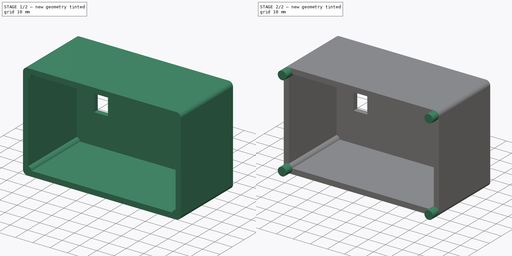
[diagram: build sequence overview — one tinted view per stage of 2, left to right]
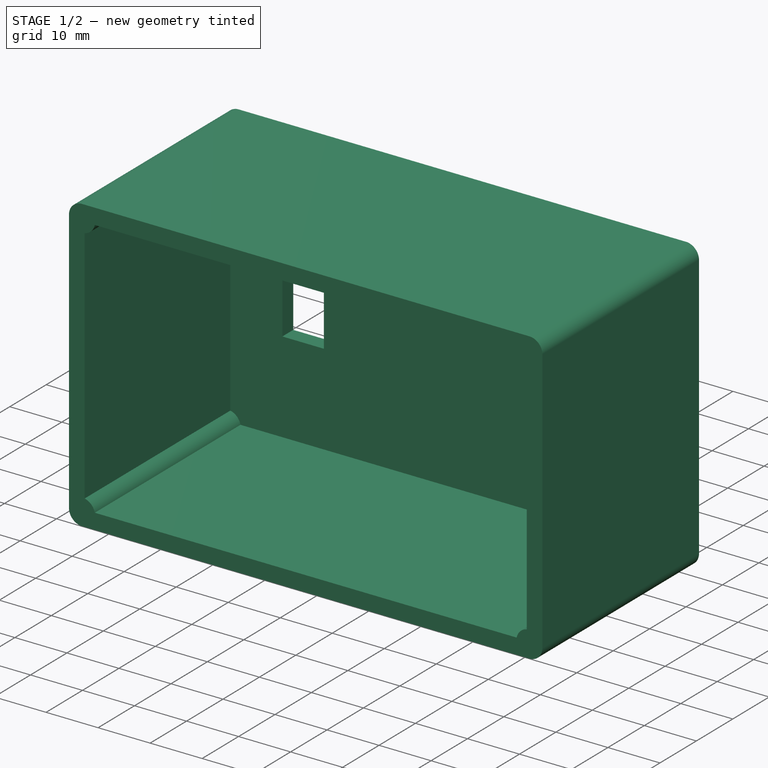
[diagram: stage 1 of 2 — iso view after this stage's code; geometry added in this stage tinted green]
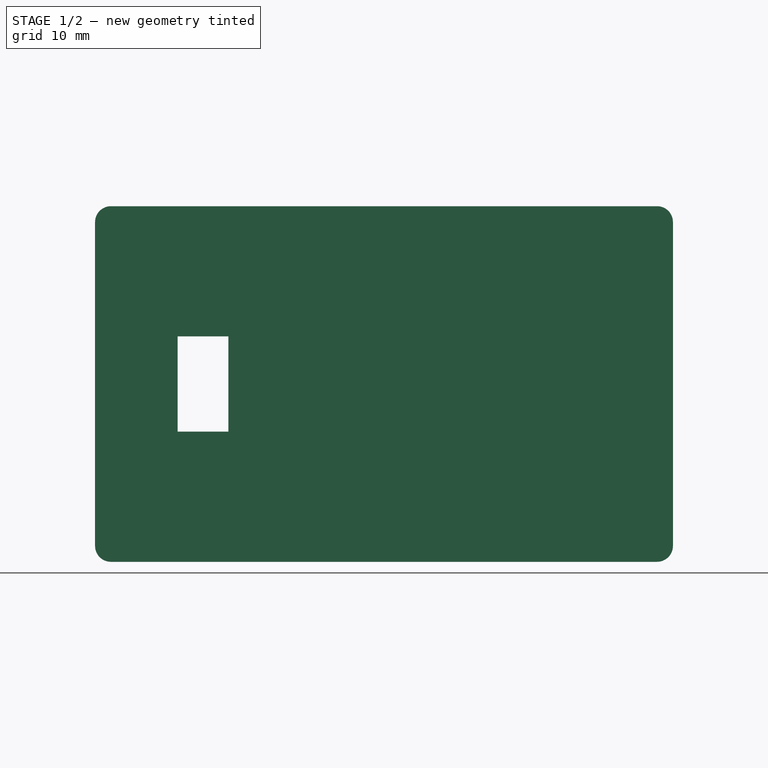
[diagram: stage 1 of 2 — front view after this stage's code; geometry added in this stage tinted green]
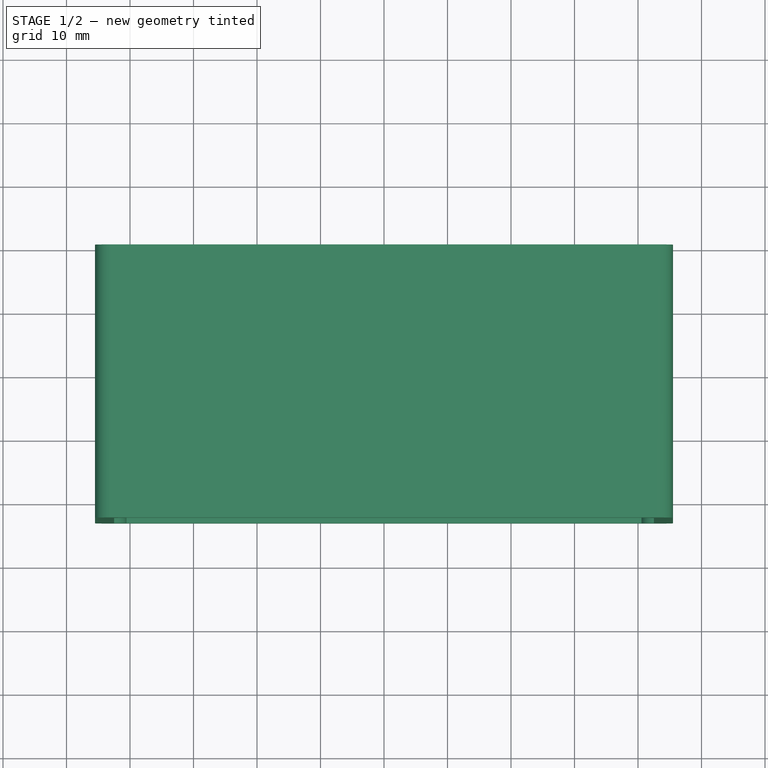
[diagram: stage 1 of 2 — top view after this stage's code; geometry added in this stage tinted green]
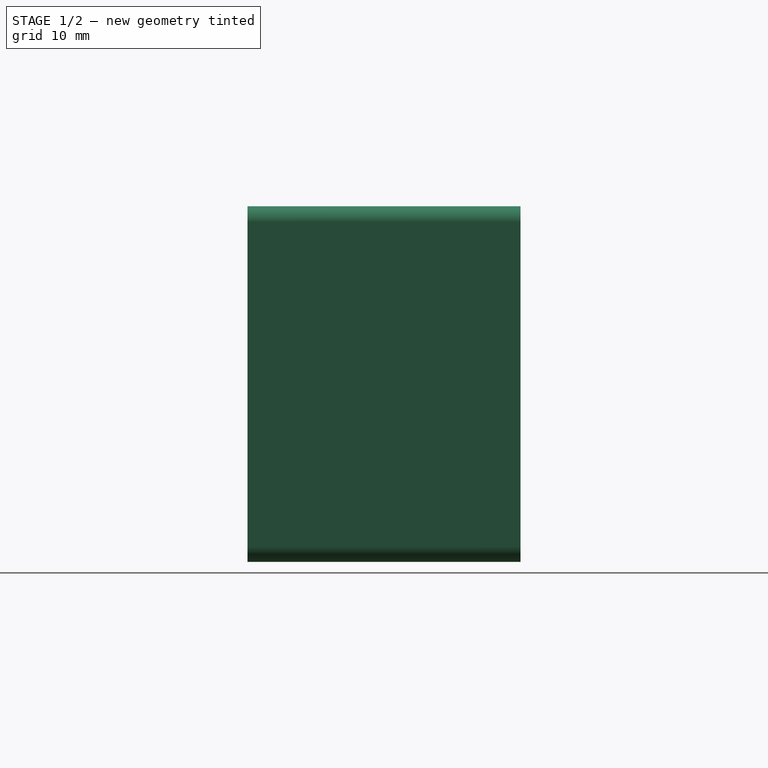
[diagram: stage 1 of 2 — right view after this stage's code; geometry added in this stage tinted green]
FCSTD DOCUMENT  (FreeCAD 0.20R29603 (Git))
Label: body2
License: All rights reserved
LicenseURL: http://en.wikipedia.org/wiki/All_rights_reserved
objects: Sketcher::SketchObject×3, PartDesign::Pad×3, PartDesign::Body×1
note: 10 computed .brp shape members not serialized (recipe doc carries the construction recipe); baked Part::Feature solids carry a one-line shape summary decoded from their .brp

FEATURE [Sketcher::SketchObject] Sketch
  FullyConstrained = true
  MapMode = 5
  Placement = pos=(0,0,0) rot=(1,0,0;1.5708rad)
  Support = -> [XZ_Plane]
  sketch-geometry (16):
    g0: LineSegment StartX=-40.5505 StartY=25 StartZ=0 EndX=40.5505 EndY=25 EndZ=0
    g1: LineSegment StartX=42.5 StartY=23.0505 StartZ=0 EndX=42.5 EndY=-23.0505 EndZ=0
    g2: LineSegment StartX=40.5505 StartY=-25 StartZ=0 EndX=-40.5505 EndY=-25 EndZ=0
    g3: LineSegment StartX=-42.5 StartY=-23.0505 StartZ=0 EndX=-42.5 EndY=23.0505 EndZ=0
    g4: LineSegment StartX=-43 StartY=28 StartZ=0 EndX=43 EndY=28 EndZ=0
    g5: LineSegment StartX=45.5 StartY=25.5 StartZ=0 EndX=45.5 EndY=-25.5 EndZ=0
    g6: LineSegment StartX=43 StartY=-28 StartZ=0 EndX=-43 EndY=-28 EndZ=0
    g7: LineSegment StartX=-45.5 StartY=-25.5 StartZ=0 EndX=-45.5 EndY=25.5 EndZ=0
    g8: ArcOfCircle CenterX=-43 CenterY=25.5 CenterZ=0 NormalX=0 NormalY=0 NormalZ=1 AngleXU=0 Radius=2.5 StartAngle=4.91375 EndAngle=6.08183
    g9: ArcOfCircle CenterX=43 CenterY=25.5 CenterZ=0 NormalX=0 NormalY=0 NormalZ=1 AngleXU=0 Radius=2.5 StartAngle=3.34295 EndAngle=4.51103
    g10: ArcOfCircle CenterX=43 CenterY=-25.5 CenterZ=0 NormalX=0 NormalY=0 NormalZ=1 AngleXU=0 Radius=2.5 StartAngle=4.71239 EndAngle=6.28319
    g11: ArcOfCircle CenterX=-43 CenterY=-25.5 CenterZ=0 NormalX=0 NormalY=0 NormalZ=1 AngleXU=0 Radius=2.5 StartAngle=3.14159 EndAngle=4.71239
    g12: ArcOfCircle CenterX=-43 CenterY=-25.5 CenterZ=0 NormalX=0 NormalY=0 NormalZ=1 AngleXU=0 Radius=2.5 StartAngle=0.201358 EndAngle=1.36944
    g13: ArcOfCircle CenterX=43 CenterY=-25.5 CenterZ=0 NormalX=0 NormalY=0 NormalZ=1 AngleXU=0 Radius=2.5 StartAngle=1.77215 EndAngle=2.94023
    g14: ArcOfCircle CenterX=43 CenterY=25.5 CenterZ=0 NormalX=0 NormalY=0 NormalZ=1 AngleXU=0 Radius=2.5 StartAngle=5e-16 EndAngle=1.5708
    g15: ArcOfCircle CenterX=-43 CenterY=25.5 CenterZ=0 NormalX=0 NormalY=0 NormalZ=1 AngleXU=0 Radius=2.5 StartAngle=1.5708 EndAngle=3.14159
  constraints (44):
    c: Horizontal(g0)
    c: Horizontal(g2)
    c: Vertical(g1)
    c: Vertical(g3)
    c: Horizontal(g4)
    c: Horizontal(g6)
    c: Vertical(g5)
    c: Vertical(g7)
    c: Equal(g8,g9)
    c: Equal(g8,g10)
    c: Diameter(g8) = 5
    c: Coincident(g12,g3)
    c: Tangent(g11,g7) = 1.5708
    c: Equal(g11,g12)
    c: Tangent(g11,g6) = 1.5708
    c: Coincident(g12,g2)
    c: Coincident(g11,g12)
    c: Tangent(g10,g6) = 1.5708
    c: Coincident(g2,g13)
    c: Equal(g10,g13)
    c: Tangent(g10,g5) = 1.5708
    c: Coincident(g13,g1)
    c: Coincident(g10,g13)
    c: Coincident(g14,g4) = 1.5708
    c: Equal(g9,g14)
    c: Tangent(g14,g5) = 1.5708
    c: Coincident(g9,g14)
    c: Coincident(g1,g9)
    c: Coincident(g0,g9)
    c: Coincident(g15,g7) = 1.5708
    c: Coincident(g8,g3)
    c: Equal(g8,g15)
    c: Coincident(g8,g0)
    c: Tangent(g15,g4) = 1.5708
    c: Coincident(g8,g15)
    c: DistanceX(g3,g1) = 85
    c: DistanceY(g0,g4) = 3
    c: DistanceX(g1,g5) = 3
    c: Equal(g6,g4)
    c: Equal(g5,g7)
    c: Symmetric(g0,g2,g-1)
    c: Symmetric(g3,g1,g-2)
    c: DistanceY(g6,g2) = 3
    c: DistanceY(g2,g0) = 50
FEATURE [PartDesign::Pad] Pad
  Direction = (0,-1,2e-16)
  Length = 43
  Length2 = 10
  Placement = pos=(0,0,0) rot=(1,0,0;1.5708rad)
  Profile = -> Sketch
  ReferenceAxis = -> Sketch [N_Axis]
  Type = 0
FEATURE [Sketcher::SketchObject] Sketch001
  FullyConstrained = true
  MapMode = 5
  Placement = pos=(0,0,0) rot=(1,0,0;1.5708rad)
  Support = -> [XZ_Plane]
  sketch-geometry (8):
    g0: LineSegment StartX=-42.5 StartY=25 StartZ=0 EndX=42.5 EndY=25 EndZ=0
    g1: LineSegment StartX=42.5 StartY=25 StartZ=0 EndX=42.5 EndY=-25 EndZ=0
    g2: LineSegment StartX=42.5 StartY=-25 StartZ=0 EndX=-42.5 EndY=-25 EndZ=0
    g3: LineSegment StartX=-42.5 StartY=-25 StartZ=0 EndX=-42.5 EndY=25 EndZ=0
    g4: LineSegment StartX=-32.5 StartY=7.5 StartZ=0 EndX=-24.5 EndY=7.5 EndZ=0
    g5: LineSegment StartX=-24.5 StartY=7.5 StartZ=0 EndX=-24.5 EndY=-7.5 EndZ=0
    g6: LineSegment StartX=-24.5 StartY=-7.5 StartZ=0 EndX=-32.5 EndY=-7.5 EndZ=0
    g7: LineSegment StartX=-32.5 StartY=-7.5 StartZ=0 EndX=-32.5 EndY=7.5 EndZ=0
  constraints (21):
    c: Coincident(g0,g1)
    c: Coincident(g1,g2)
    c: Coincident(g2,g3)
    c: Coincident(g3,g0)
    c: Horizontal(g2)
    c: Vertical(g1)
    c: DistanceY(g1,g1) = 50
    c: DistanceX(g0,g0) = 85
    c: Symmetric(g0,g2,g-1)
    c: Symmetric(g0,g0,g-2)
    c: Coincident(g4,g5)
    c: Coincident(g5,g6)
    c: Coincident(g6,g7)
    c: Coincident(g7,g4)
    c: Horizontal(g4)
    c: Horizontal(g6)
    c: Vertical(g7)
    c: Symmetric(g4,g5,g-1)
    c: DistanceX(g6,g-1) = 32.5
    c: DistanceX(g4,g4) = 8
    c: DistanceY(g5,g5) = 15
FEATURE [PartDesign::Pad] Pad001
  BaseFeature = -> Pad
  Direction = (0,-1,-2e-16)
  Length = 3
  Length2 = 10
  Placement = pos=(0,0,0) rot=(1,0,0;1.5708rad)
  Profile = -> Sketch001
  ReferenceAxis = -> Sketch001 [N_Axis]
  Type = 0
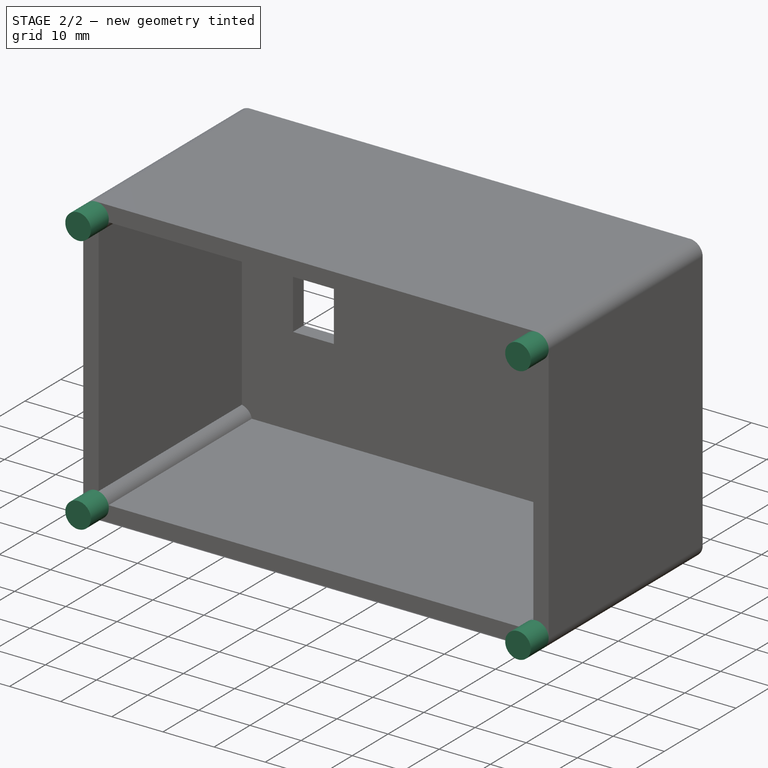
[diagram: stage 2 of 2 — iso view after this stage's code; geometry added in this stage tinted green]
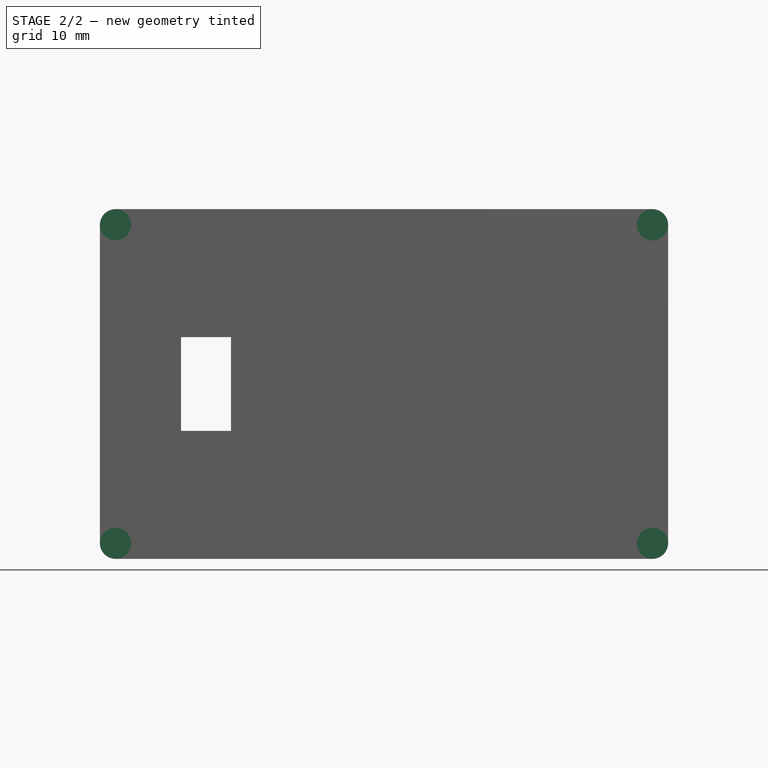
[diagram: stage 2 of 2 — front view after this stage's code; geometry added in this stage tinted green]
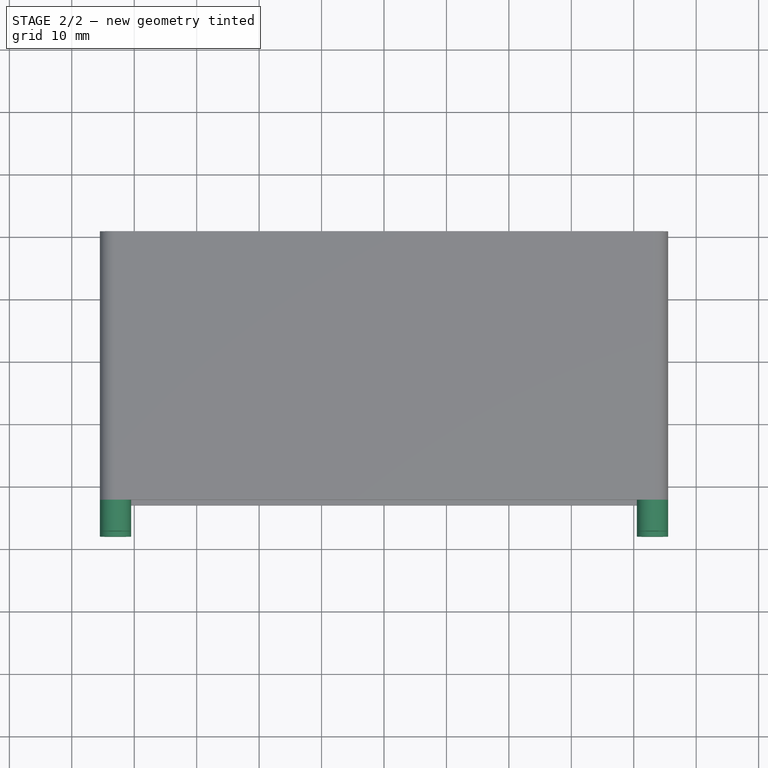
[diagram: stage 2 of 2 — top view after this stage's code; geometry added in this stage tinted green]
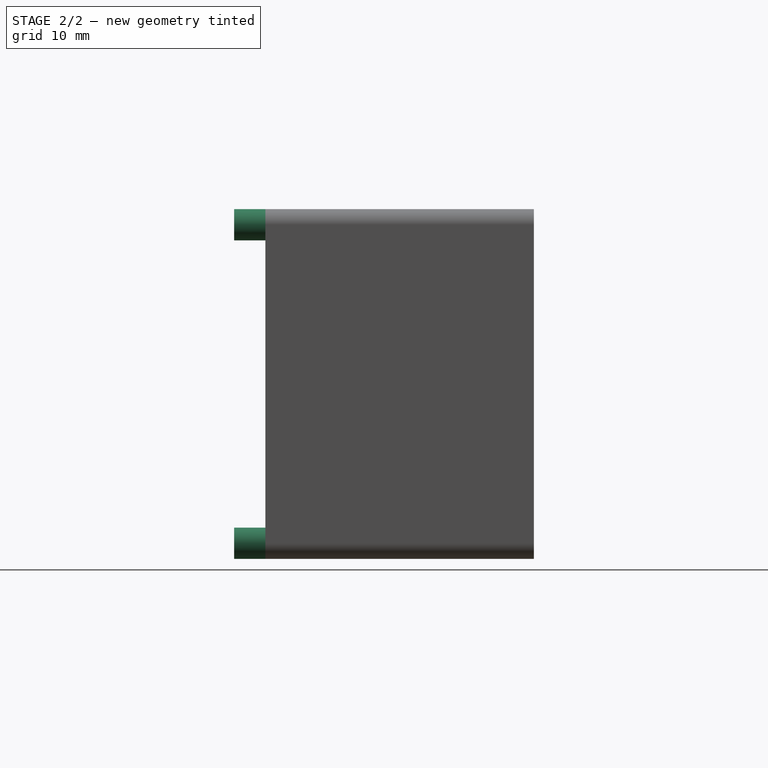
[diagram: stage 2 of 2 — right view after this stage's code; geometry added in this stage tinted green]
FEATURE [Sketcher::SketchObject] Sketch002
  FullyConstrained = true
  MapMode = 5
  Placement = pos=(0,0,0) rot=(1,0,0;1.5708rad)
  Support = -> [XZ_Plane]
  sketch-geometry (4):
    g0: Circle CenterX=-43 CenterY=25.5 CenterZ=0 NormalX=0 NormalY=0 NormalZ=1 AngleXU=0 Radius=2.5
    g1: Circle CenterX=43 CenterY=25.5 CenterZ=0 NormalX=0 NormalY=0 NormalZ=1 AngleXU=0 Radius=2.5
    g2: Circle CenterX=43 CenterY=-25.5 CenterZ=0 NormalX=0 NormalY=0 NormalZ=1 AngleXU=0 Radius=2.5
    g3: Circle CenterX=-43 CenterY=-25.5 CenterZ=0 NormalX=0 NormalY=0 NormalZ=1 AngleXU=0 Radius=2.5
  constraints (10):
    c: Equal(g3,g0)
    c: Equal(g3,g1)
    c: Equal(g3,g2)
    c: Diameter(g3) = 5
    c: DistanceX(g0,g-1) = 43
    c: DistanceY(g3,g0) = 51
    c: DistanceY(g2,g1) = 51
    c: DistanceX(g-1,g1) = 43
    c: Symmetric(g1,g2,g-1)
    c: Symmetric(g3,g0,g-1)
FEATURE [PartDesign::Pad] Pad002
  BaseFeature = -> Pad001
  Direction = (0,-1,-2e-16)
  Length = 48
  Length2 = 10
  Placement = pos=(0,0,0) rot=(1,0,0;1.5708rad)
  Profile = -> Sketch002
  ReferenceAxis = -> Sketch002 [N_Axis]
  Type = 0
FEATURE [PartDesign::Body] Body
  Group = -> [Sketch,Pad,Sketch001,Pad001,Sketch002,Pad002]
  Origin = -> Origin
  Tip = -> Pad002
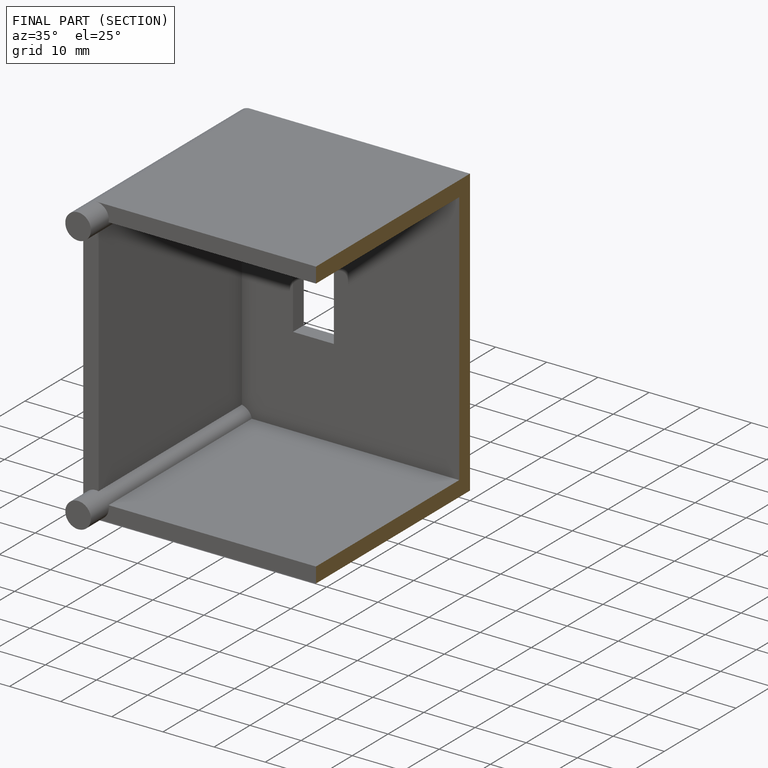
[diagram: finished part — half-section view (interior)]
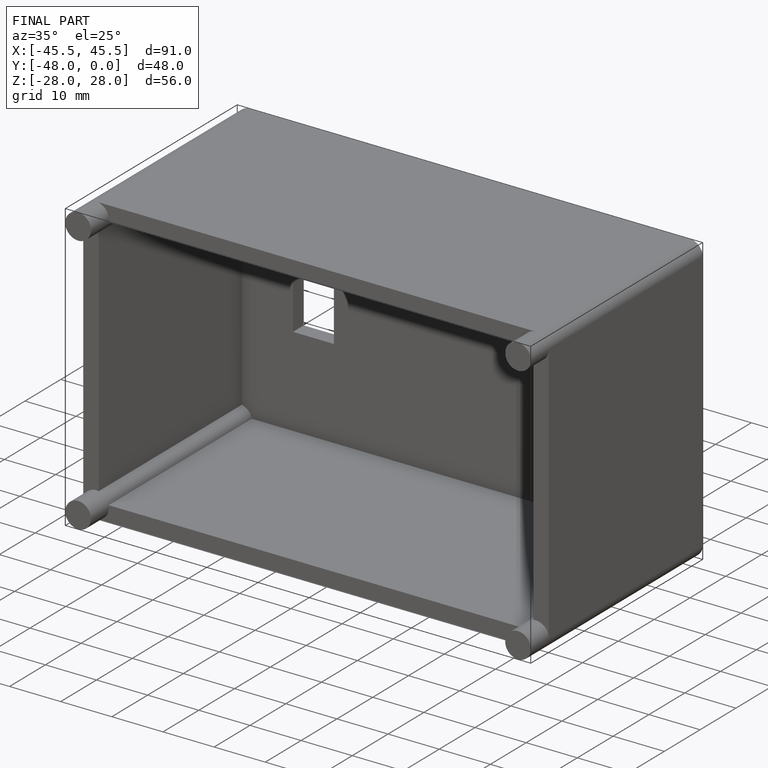
[diagram: finished part — iso view with bounding-box wireframe]
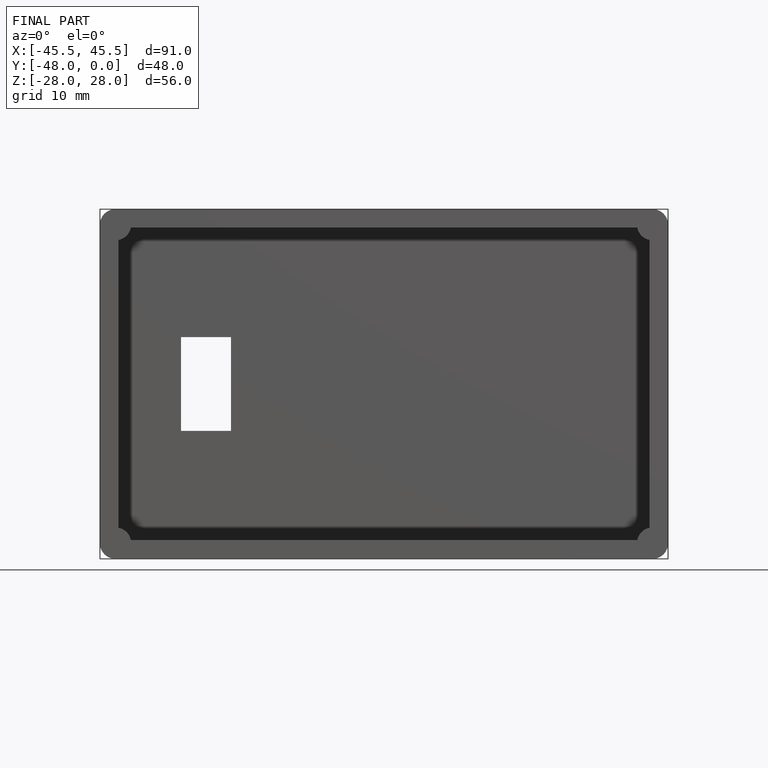
[diagram: finished part — front view with bounding-box wireframe]
